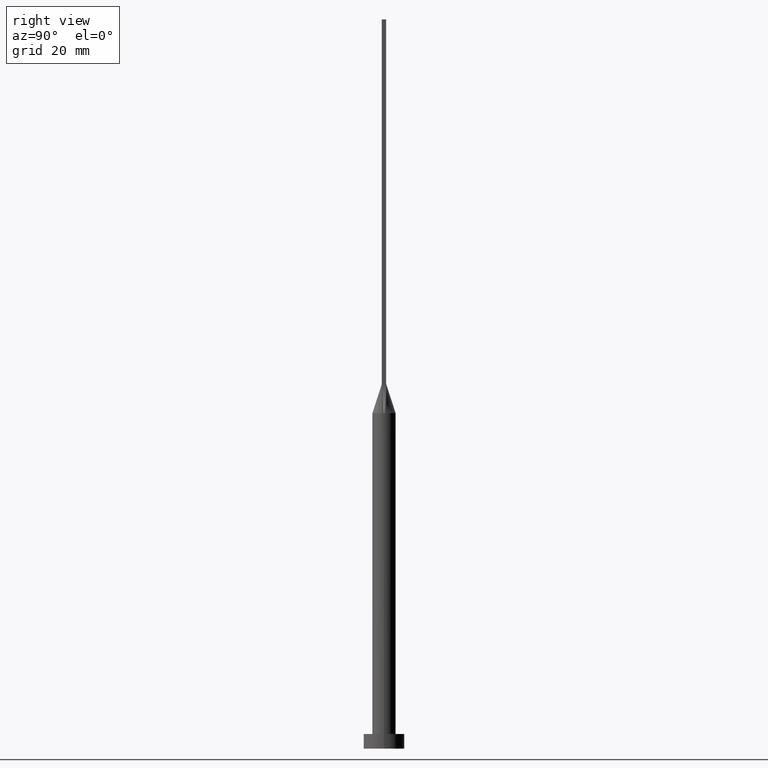
[diagram: clean part render]
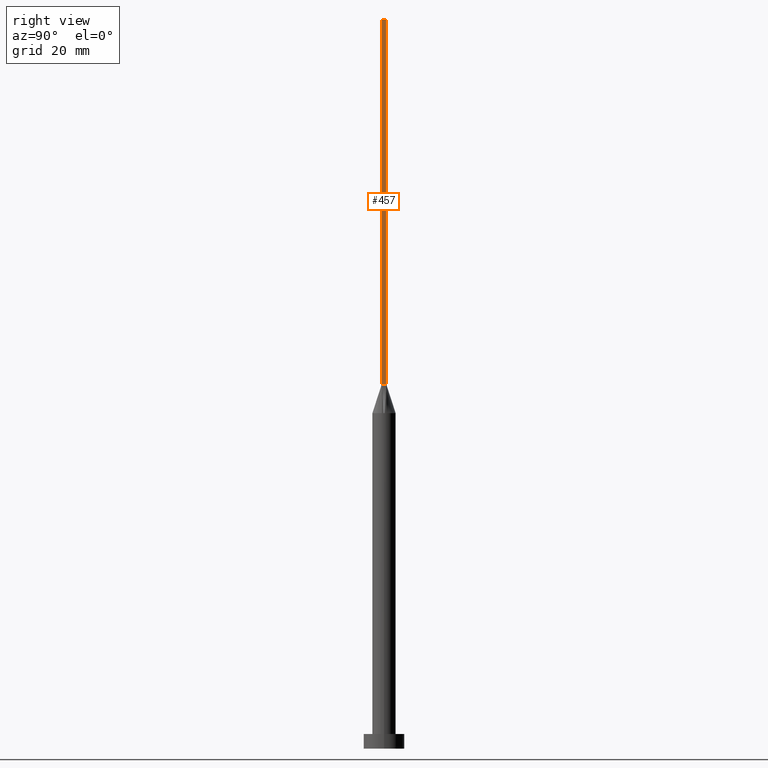
[diagram: same view with one face highlighted and labeled with its STEP entity id]
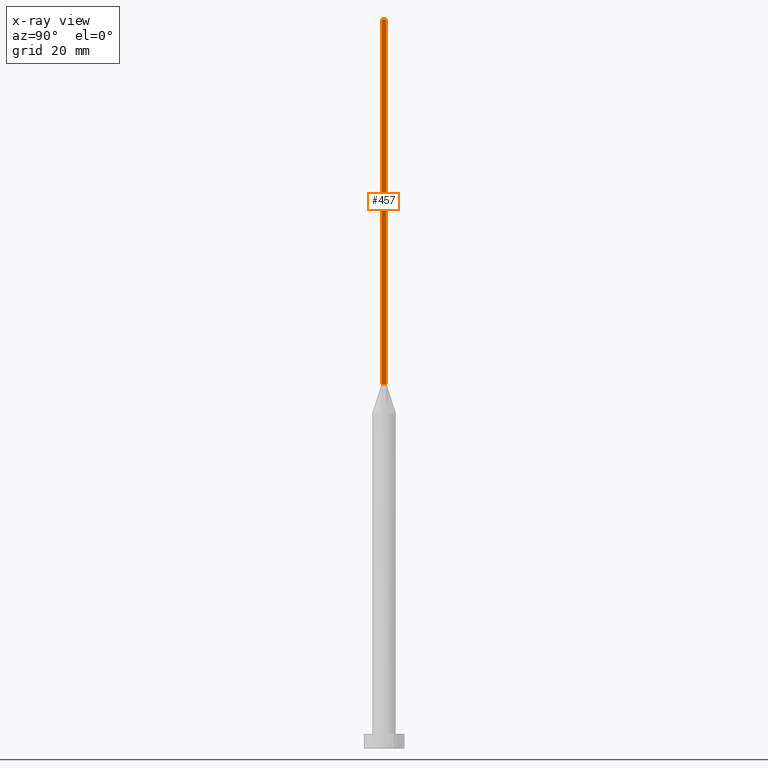
[diagram: x-ray of the same camera — body ghosted, the highlighted face saturated]
A machine part, right view. The second image highlights one B-rep face of the part: STEP entity #457.
The next image is the same camera in x-ray: the body ghosted, the highlighted face saturated — about 0% of this face is hidden behind the body in this view.
In plain terms, the highlighted planar face has unit normal (-1, 0, 0).
Its self-contained STEP definition (entity closure, byte-faithful):
#35 = EDGE_CURVE ( 'NONE', #117, #505, #256, .T. ) ;
#36 = ORIENTED_EDGE ( 'NONE', *, *, #138, .F. ) ;
#37 = DIRECTION ( 'NONE',  ( 0.000000000000000000, 1.000000000000000000, 0.000000000000000000 ) ) ;
#38 = DIRECTION ( 'NONE',  ( 0.000000000000000000, 0.000000000000000000, 1.000000000000000000 ) ) ;
#47 = VECTOR ( 'NONE', #412, 1000.000000000000000 ) ;
#59 = AXIS2_PLACEMENT_3D ( 'NONE', #486, #559, #38 ) ;
#70 = CARTESIAN_POINT ( 'NONE',  ( 3.750000000000000000, 0.7500000000000002220, 250.0000000000000000 ) ) ;
#83 = VERTEX_POINT ( 'NONE', #126 ) ;
#96 = VECTOR ( 'NONE', #37, 1000.000000000000000 ) ;
#117 = VERTEX_POINT ( 'NONE', #569 ) ;
#126 = CARTESIAN_POINT ( 'NONE',  ( 3.750000000000000000, -0.7499999999999997780, 125.0000000000000000 ) ) ;
#138 = EDGE_CURVE ( 'NONE', #505, #416, #228, .T. ) ;
#178 = CARTESIAN_POINT ( 'NONE',  ( 3.750000000000000000, 0.7500000000000002220, 250.0000000000000000 ) ) ;
#191 = CARTESIAN_POINT ( 'NONE',  ( 3.750000000000000000, 0.7500000000000002220, 125.0000000000000000 ) ) ;
#192 = FACE_OUTER_BOUND ( 'NONE', #491, .T. ) ;
#204 = LINE ( 'NONE', #544, #547 ) ;
#228 = LINE ( 'NONE', #178, #281 ) ;
#229 = EDGE_CURVE ( 'NONE', #117, #83, #204, .T. ) ;
#234 = CARTESIAN_POINT ( 'NONE',  ( 3.750000000000000000, 0.7500000000000002220, 125.0000000000000000 ) ) ;
#256 = LINE ( 'NONE', #440, #96 ) ;
#281 = VECTOR ( 'NONE', #492, 1000.000000000000000 ) ;
#287 = ORIENTED_EDGE ( 'NONE', *, *, #35, .F. ) ;
#292 = ORIENTED_EDGE ( 'NONE', *, *, #229, .T. ) ;
#307 = PLANE ( 'NONE',  #59 ) ;
#412 = DIRECTION ( 'NONE',  ( -0.000000000000000000, 1.000000000000000000, -0.000000000000000000 ) ) ;
#416 = VERTEX_POINT ( 'NONE', #191 ) ;
#418 = EDGE_CURVE ( 'NONE', #83, #416, #459, .T. ) ;
#439 = ORIENTED_EDGE ( 'NONE', *, *, #418, .T. ) ;
#440 = CARTESIAN_POINT ( 'NONE',  ( 3.750000000000000000, -0.7499999999999997780, 250.0000000000000000 ) ) ;
#455 = DIRECTION ( 'NONE',  ( -0.000000000000000000, -0.000000000000000000, -1.000000000000000000 ) ) ;
#457 = ADVANCED_FACE ( 'NONE', ( #192 ), #307, .F. ) ;
#459 = LINE ( 'NONE', #234, #47 ) ;
#486 = CARTESIAN_POINT ( 'NONE',  ( 3.750000000000000000, -0.7499999999999997780, 250.0000000000000000 ) ) ;
#491 = EDGE_LOOP ( 'NONE', ( #439, #36, #287, #292 ) ) ;
#492 = DIRECTION ( 'NONE',  ( -0.000000000000000000, -0.000000000000000000, -1.000000000000000000 ) ) ;
#505 = VERTEX_POINT ( 'NONE', #70 ) ;
#544 = CARTESIAN_POINT ( 'NONE',  ( 3.750000000000000000, -0.7499999999999997780, 250.0000000000000000 ) ) ;
#547 = VECTOR ( 'NONE', #455, 1000.000000000000000 ) ;
#559 = DIRECTION ( 'NONE',  ( -1.000000000000000000, 0.000000000000000000, 0.000000000000000000 ) ) ;
#569 = CARTESIAN_POINT ( 'NONE',  ( 3.750000000000000000, -0.7499999999999997780, 250.0000000000000000 ) ) ;